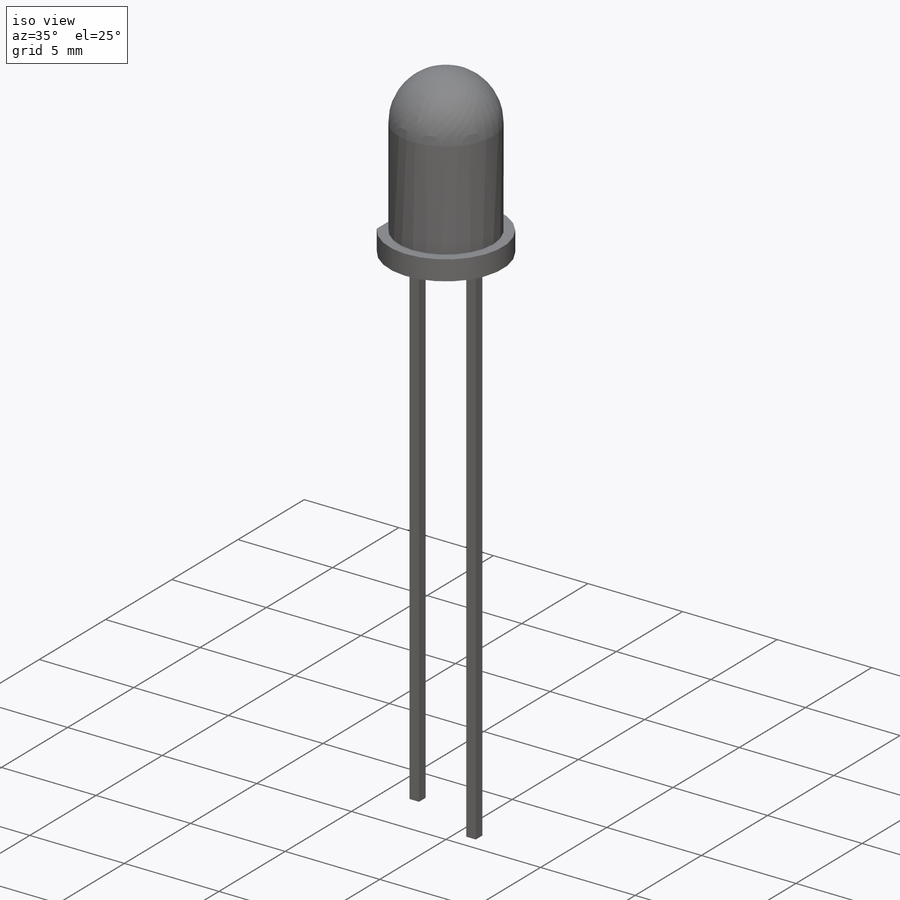
[diagram: iso view]
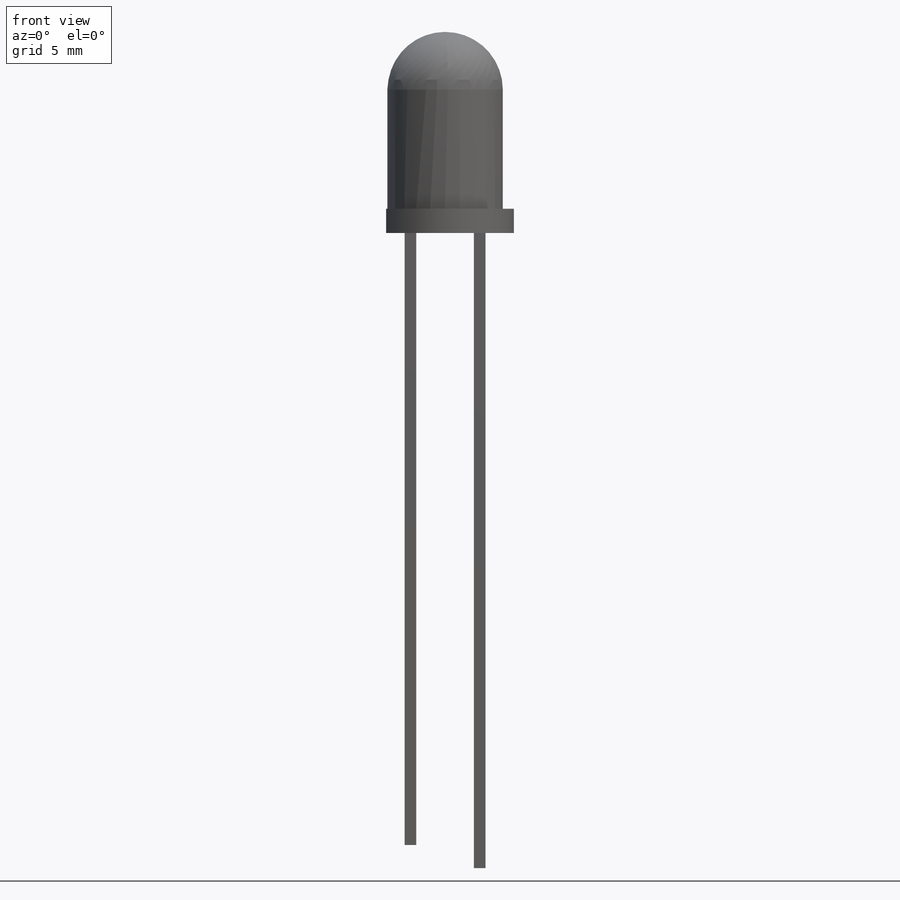
[diagram: front view]
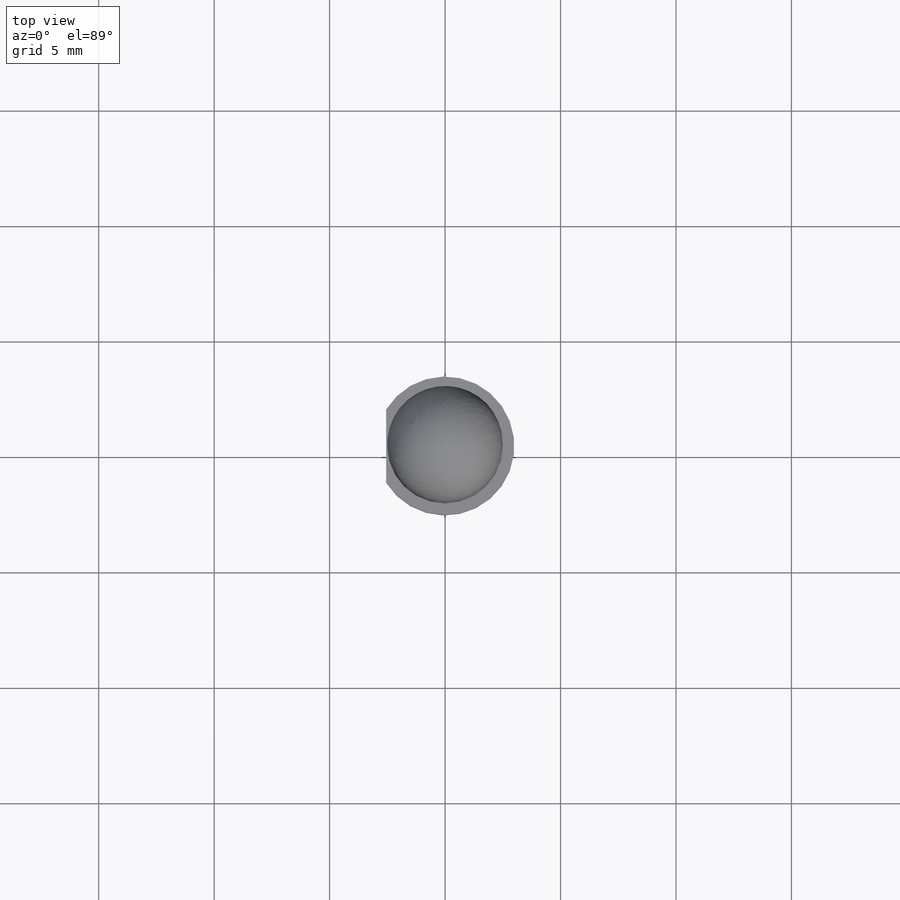
[diagram: top view]
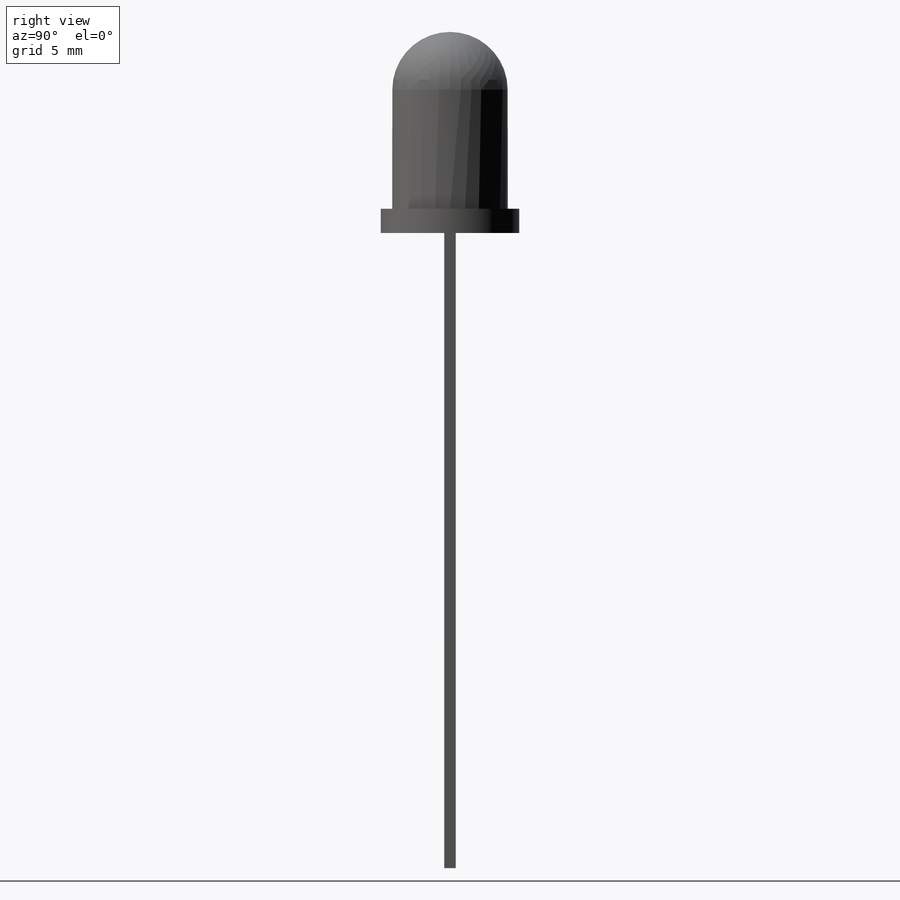
[diagram: right view]
SOLIDWORKS PART (.sldprt)
format: sldprt  version: not decoded by parser v0  size: 191,488 bytes
history: native  units: mm
features: sketch x5, revolve x2, cut_extrude x2, material x1, extrude x1 (+11 scaffold rows collapsed)
feature tree (22):
  scaffold x11  (default folders/planes/origin — collapsed)
  material  "Material <not specified>"
  sketch  "Sketch1"  dims[D1=2.5mm D2=1.05mm D3=3.0mm D4=8.71mm]
  revolve  "Revolve1"  Angle=360deg
  sketch  "Sketch2"  dims[D1=5.55mm]
  cut_extrude  "Cut-Extrude1"  Depth=10mm
  sketch  "Sketch3"  dims[D1=0.5mm D2=0.5mm D3=1.25mm]
  extrude  "Boss-Extrude1"  Depth=27.5mm
  sketch  "Sketch4"  dims[D1=1.0mm]
  cut_extrude  "Cut-Extrude2"  Depth=27.5mm
  sketch  "Sketch5"  dims[c1.D1=3.5mm c1.D2=~263.318575mm c2.D2=7.5deg c2.D3=1000.0mm c2.D4=~1008.646726mm c3.D4=~179.659936deg c4.D4=0.1mm c4.D1=1.0mm c4.D2=3.5mm c4.D3=~1000.487109mm c5.D3=15.0deg]
  revolve  "beam cone 1m long"  Angle=360deg
decode coverage: 10 of 10 modeling features carry decoded parameters
note: ~ marks probable driven/reference dimensions
note: suppression state not decoded; provenance and decode notes live in map.json
